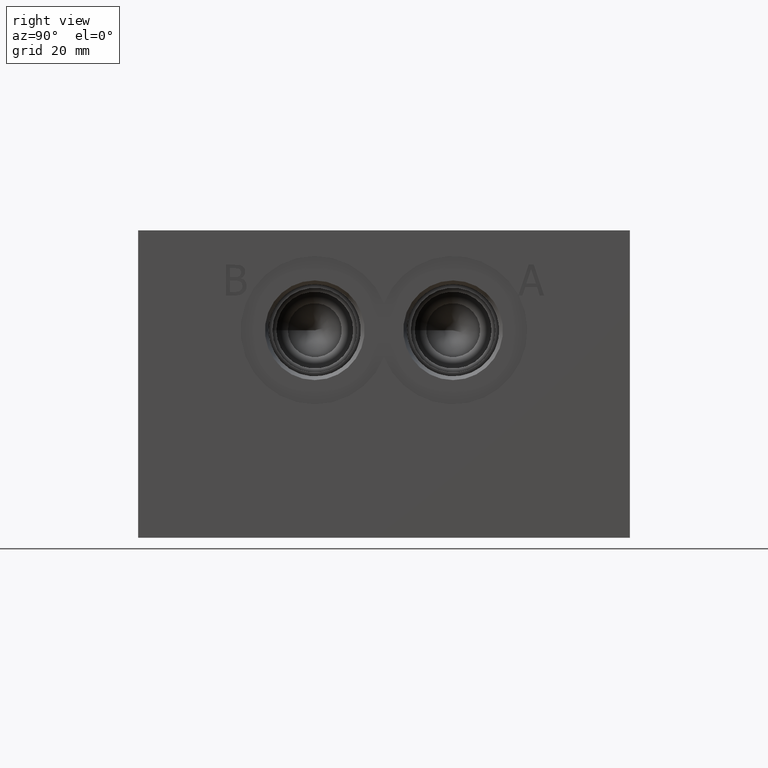
[diagram: clean part render]
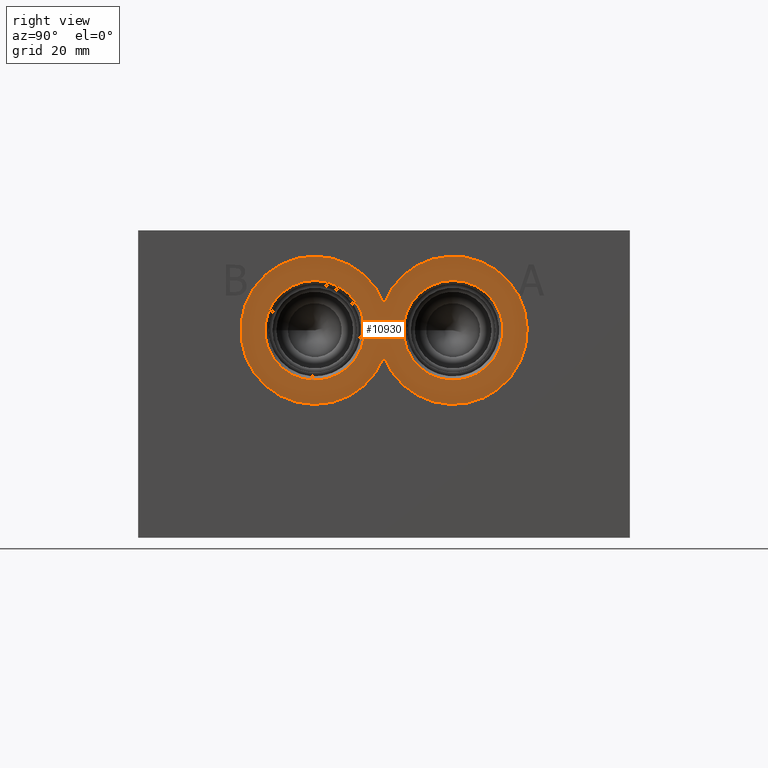
[diagram: same view with one face highlighted and labeled with its STEP entity id]
A machine part, right view. The second image highlights one B-rep face of the part: STEP entity #10930.
In plain terms, the highlighted planar face has unit normal (-1, 0, 0).
Its self-contained STEP definition (entity closure, byte-faithful):
#123=FACE_BOUND('',#2148,.T.);
#124=FACE_BOUND('',#2149,.T.);
#443=PLANE('',#11443);
#1533=FACE_OUTER_BOUND('',#2147,.T.);
#2147=EDGE_LOOP('',(#10018,#10019,#10020,#10021,#10022));
#2148=EDGE_LOOP('',(#10023,#10024));
#2149=EDGE_LOOP('',(#10025,#10026));
#2578=CIRCLE('',#11056,15.3162);
#2581=CIRCLE('',#11060,15.3162);
#2627=CIRCLE('',#11390,10.2997);
#2628=CIRCLE('',#11391,10.2997);
#2659=CIRCLE('',#11442,15.3162);
#2660=CIRCLE('',#11444,10.2997);
#2661=CIRCLE('',#11445,10.2997);
#2835=LINE('',#14149,#3835);
#2850=LINE('',#14179,#3850);
#3835=VECTOR('',#11748,10.);
#3850=VECTOR('',#11771,10.);
#4836=VERTEX_POINT('',#14147);
#4837=VERTEX_POINT('',#14148);
#4848=VERTEX_POINT('',#14178);
#4862=VERTEX_POINT('',#14222);
#4865=VERTEX_POINT('',#14230);
#5654=VERTEX_POINT('',#18625);
#5655=VERTEX_POINT('',#18626);
#5688=VERTEX_POINT('',#18730);
#5689=VERTEX_POINT('',#18731);
#5899=EDGE_CURVE('',#4836,#4837,#2835,.T.);
#5914=EDGE_CURVE('',#4848,#4836,#2850,.T.);
#5936=EDGE_CURVE('',#4848,#4862,#2578,.T.);
#5941=EDGE_CURVE('',#4865,#4837,#2581,.T.);
#7123=EDGE_CURVE('',#5654,#5655,#2627,.T.);
#7124=EDGE_CURVE('',#5655,#5654,#2628,.T.);
#7172=EDGE_CURVE('',#4862,#4865,#2659,.T.);
#7173=EDGE_CURVE('',#5688,#5689,#2660,.T.);
#7174=EDGE_CURVE('',#5689,#5688,#2661,.T.);
#10018=ORIENTED_EDGE('',*,*,#5899,.T.);
#10019=ORIENTED_EDGE('',*,*,#5941,.F.);
#10020=ORIENTED_EDGE('',*,*,#7172,.F.);
#10021=ORIENTED_EDGE('',*,*,#5936,.F.);
#10022=ORIENTED_EDGE('',*,*,#5914,.T.);
#10023=ORIENTED_EDGE('',*,*,#7123,.T.);
#10024=ORIENTED_EDGE('',*,*,#7124,.T.);
#10025=ORIENTED_EDGE('',*,*,#7173,.T.);
#10026=ORIENTED_EDGE('',*,*,#7174,.T.);
#10930=ADVANCED_FACE('',(#1533,#123,#124),#443,.F.);
#11056=AXIS2_PLACEMENT_3D('',#14223,#11809,#11810);
#11060=AXIS2_PLACEMENT_3D('',#14232,#11819,#11820);
#11390=AXIS2_PLACEMENT_3D('',#18627,#13307,#13308);
#11391=AXIS2_PLACEMENT_3D('',#18628,#13309,#13310);
#11442=AXIS2_PLACEMENT_3D('',#18728,#13428,#13429);
#11443=AXIS2_PLACEMENT_3D('',#18729,#13430,#13431);
#11444=AXIS2_PLACEMENT_3D('',#18732,#13432,#13433);
#11445=AXIS2_PLACEMENT_3D('',#18733,#13434,#13435);
#11748=DIRECTION('',(0.,0.319451166674567,0.947602739606771));
#11771=DIRECTION('',(0.,-1.,0.));
#11809=DIRECTION('center_axis',(-1.,0.,0.));
#11810=DIRECTION('ref_axis',(0.,0.,1.));
#11819=DIRECTION('center_axis',(-1.,0.,0.));
#11820=DIRECTION('ref_axis',(0.,0.,1.));
#13307=DIRECTION('center_axis',(-1.,0.,0.));
#13308=DIRECTION('ref_axis',(0.,0.,1.));
#13309=DIRECTION('center_axis',(-1.,0.,0.));
#13310=DIRECTION('ref_axis',(0.,0.,1.));
#13428=DIRECTION('center_axis',(-1.,0.,0.));
#13429=DIRECTION('ref_axis',(0.,0.,1.));
#13430=DIRECTION('center_axis',(-1.,0.,0.));
#13431=DIRECTION('ref_axis',(0.,0.,1.));
#13432=DIRECTION('center_axis',(-1.,0.,0.));
#13433=DIRECTION('ref_axis',(0.,0.,1.));
#13434=DIRECTION('center_axis',(-1.,0.,0.));
#13435=DIRECTION('ref_axis',(0.,0.,1.));
#14147=CARTESIAN_POINT('',(91.2876,78.5400830638274,50.00625));
#14148=CARTESIAN_POINT('',(91.2876,78.5696101686727,50.0938376138923));
#14149=CARTESIAN_POINT('',(91.2876,73.7528976059188,35.8058008291847));
#14178=CARTESIAN_POINT('',(91.2876,78.6162624704092,50.00625));
#14179=CARTESIAN_POINT('',(91.2876,57.947048494705,50.00625));
#14222=CARTESIAN_POINT('',(91.2876,50.7873,37.3313467574691));
#14223=CARTESIAN_POINT('Origin',(91.2876,65.0748,42.8498));
#14230=CARTESIAN_POINT('',(91.2876,50.7873,48.3682532425309));
#14232=CARTESIAN_POINT('Origin',(91.2876,65.0748,42.8498));
#18625=CARTESIAN_POINT('',(91.2876,65.0748,32.5501));
#18626=CARTESIAN_POINT('',(91.2876,65.0748,53.1495));
#18627=CARTESIAN_POINT('Origin',(91.2876,65.0748,42.8498));
#18628=CARTESIAN_POINT('Origin',(91.2876,65.0748,42.8498));
#18728=CARTESIAN_POINT('Origin',(91.2876,36.4998,42.8498));
#18729=CARTESIAN_POINT('Origin',(91.2876,36.4998,32.5501));
#18730=CARTESIAN_POINT('',(91.2876,36.4998,32.5501));
#18731=CARTESIAN_POINT('',(91.2876,36.4998,53.1495));
#18732=CARTESIAN_POINT('Origin',(91.2876,36.4998,42.8498));
#18733=CARTESIAN_POINT('Origin',(91.2876,36.4998,42.8498));